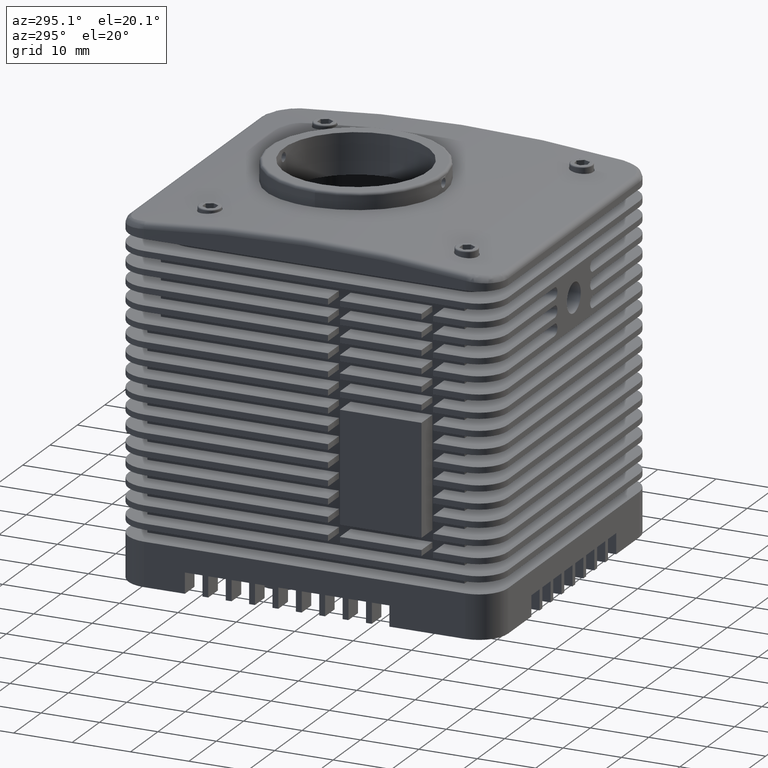
[diagram: clean part render]
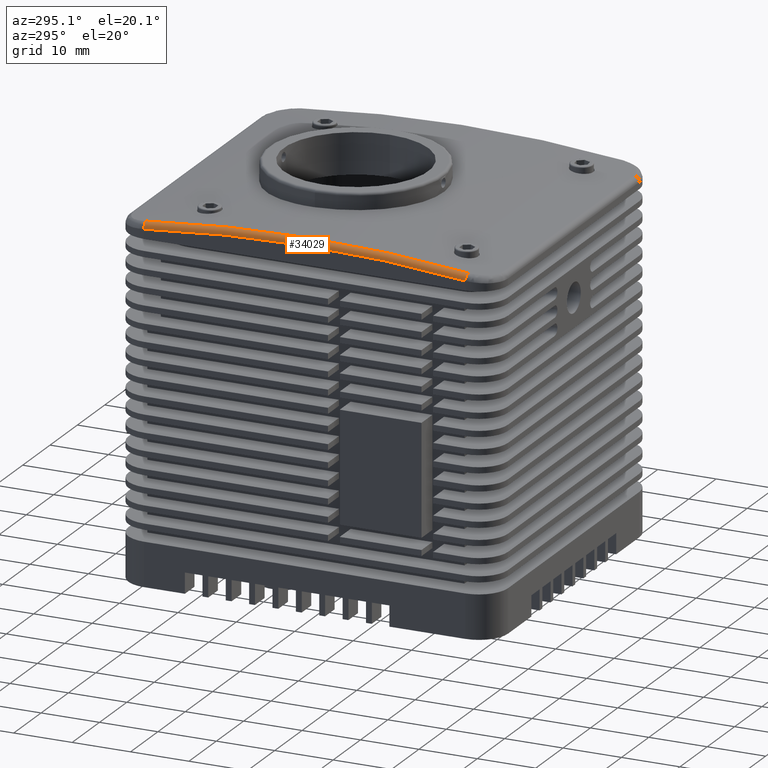
[diagram: same view with one face highlighted and labeled with its STEP entity id]
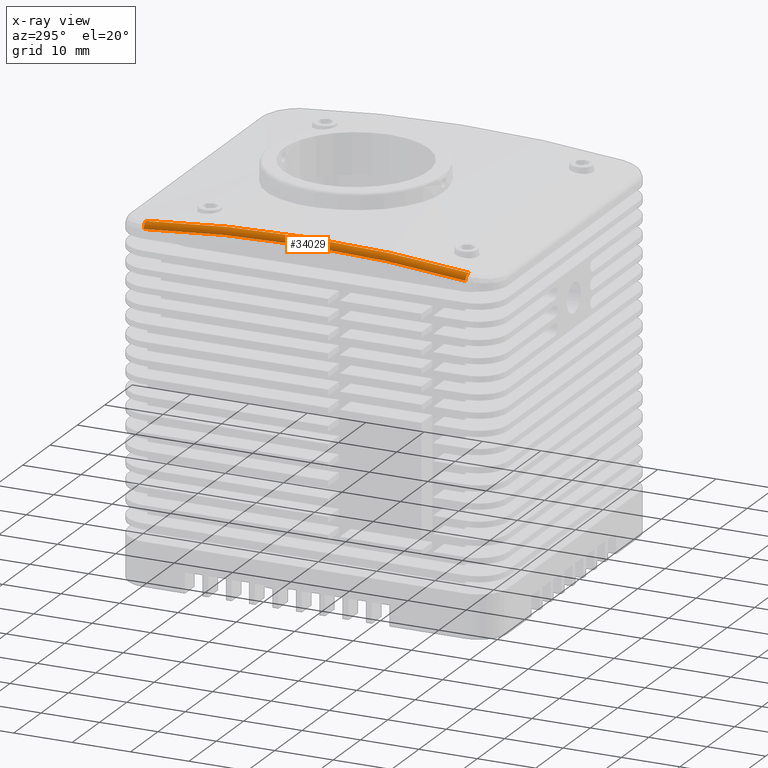
[diagram: x-ray of the same camera — body ghosted, the highlighted face saturated]
A machine part, auxiliary view. The second image highlights one B-rep face of the part: STEP entity #34029.
The next image is the same camera in x-ray: the body ghosted, the highlighted face saturated — about 0% of this face is hidden behind the body in this view.
In plain terms, the highlighted toroidal blend (fillet) surface has major radius 245.258 mm and minor (blend) radius 1 mm.
Its self-contained STEP definition (entity closure, byte-faithful):
#627 = EDGE_CURVE ( 'NONE', #16809, #15951, #25889, .T. ) ;
#1513 = AXIS2_PLACEMENT_3D ( 'NONE', #33042, #6289, #43812 ) ;
#3173 = DIRECTION ( 'NONE',  ( -1.000000000000000000, -1.067522139062650400E-016, 0.0000000000000000000 ) ) ;
#6289 = DIRECTION ( 'NONE',  ( 1.000000000000000000, 1.067522139062650400E-016, -0.0000000000000000000 ) ) ;
#7073 = ORIENTED_EDGE ( 'NONE', *, *, #627, .F. ) ;
#7604 = CARTESIAN_POINT ( 'NONE',  ( -29.00000000000001100, 27.50000000000000000, 1.607399318435452700 ) ) ;
#11132 = DIRECTION ( 'NONE',  ( 9.725430412807389400E-017, -0.9936939319334724400, -0.1121265786448305500 ) ) ;
#12469 = DIRECTION ( 'NONE',  ( 1.000000000000000000, 1.067522139062650400E-016, -0.0000000000000000000 ) ) ;
#12708 = ORIENTED_EDGE ( 'NONE', *, *, #47806, .F. ) ;
#15951 = VERTEX_POINT ( 'NONE', #7604 ) ;
#16809 = VERTEX_POINT ( 'NONE', #23669 ) ;
#17776 = DIRECTION ( 'NONE',  ( -9.725430412807356200E-017, -0.9936939319334726600, 0.1121265786448305700 ) ) ;
#18784 = CIRCLE ( 'NONE', #49856, 1.000000000000000000 ) ;
#18869 = ORIENTED_EDGE ( 'NONE', *, *, #66222, .F. ) ;
#22572 = CARTESIAN_POINT ( 'NONE',  ( -28.00000000000001400, 27.61212657864483000, 2.601093250368926100 ) ) ;
#23669 = CARTESIAN_POINT ( 'NONE',  ( -29.00000000000000400, -27.49999999999999600, 1.607399318435452700 ) ) ;
#25097 = AXIS2_PLACEMENT_3D ( 'NONE', #43240, #11132, #48573 ) ;
#25889 = CIRCLE ( 'NONE', #44904, 245.2585313167246300 ) ;
#29168 = AXIS2_PLACEMENT_3D ( 'NONE', #44555, #12469, #49894 ) ;
#29931 = CIRCLE ( 'NONE', #25097, 0.9999999999999998900 ) ;
#30582 = FACE_OUTER_BOUND ( 'NONE', #55807, .T. ) ;
#32233 = TOROIDAL_SURFACE ( 'NONE', #1513, 245.2585313167246300, 1.000000000000000000 ) ;
#33042 = CARTESIAN_POINT ( 'NONE',  ( -28.00000000000001100, -1.142248688797036100E-014, -242.1045150059093800 ) ) ;
#34029 = ADVANCED_FACE ( 'NONE', ( #30582 ), #32233, .T. ) ;
#35308 = CARTESIAN_POINT ( 'NONE',  ( -29.00000000000000700, -1.152923910187662500E-014, -242.1045150059093800 ) ) ;
#40666 = DIRECTION ( 'NONE',  ( -1.131686448035751100E-016, 1.000000000000000000, -8.827154294678858600E-015 ) ) ;
#43240 = CARTESIAN_POINT ( 'NONE',  ( -28.00000000000000700, -27.49999999999999600, 1.607399318435453600 ) ) ;
#43812 = DIRECTION ( 'NONE',  ( -1.067522139062650400E-016, 1.000000000000000000, 0.0000000000000000000 ) ) ;
#44555 = CARTESIAN_POINT ( 'NONE',  ( -28.00000000000001100, -1.142248688797036100E-014, -242.1045150059093800 ) ) ;
#44904 = AXIS2_PLACEMENT_3D ( 'NONE', #35308, #3173, #40666 ) ;
#47806 = EDGE_CURVE ( 'NONE', #49071, #16809, #29931, .T. ) ;
#48573 = DIRECTION ( 'NONE',  ( 0.0000000000000000000, 0.1121265786448305700, -0.9936939319334724400 ) ) ;
#49071 = VERTEX_POINT ( 'NONE', #62469 ) ;
#49791 = CARTESIAN_POINT ( 'NONE',  ( -28.00000000000001100, 27.50000000000000000, 1.607399318435453600 ) ) ;
#49856 = AXIS2_PLACEMENT_3D ( 'NONE', #49791, #17776, #55129 ) ;
#49894 = DIRECTION ( 'NONE',  ( -1.127090926240081000E-016, 1.000000000000000000, 0.0000000000000000000 ) ) ;
#55129 = DIRECTION ( 'NONE',  ( 0.0000000000000000000, -0.1121265786448305500, -0.9936939319334725500 ) ) ;
#55807 = EDGE_LOOP ( 'NONE', ( #57991, #7073, #12708, #18869 ) ) ;
#57991 = ORIENTED_EDGE ( 'NONE', *, *, #67673, .T. ) ;
#59015 = CIRCLE ( 'NONE', #29168, 246.2585313167246300 ) ;
#62469 = CARTESIAN_POINT ( 'NONE',  ( -28.00000000000000700, -27.61212657864482600, 2.601093250368926100 ) ) ;
#65070 = VERTEX_POINT ( 'NONE', #22572 ) ;
#66222 = EDGE_CURVE ( 'NONE', #65070, #49071, #59015, .T. ) ;
#67673 = EDGE_CURVE ( 'NONE', #65070, #15951, #18784, .T. ) ;